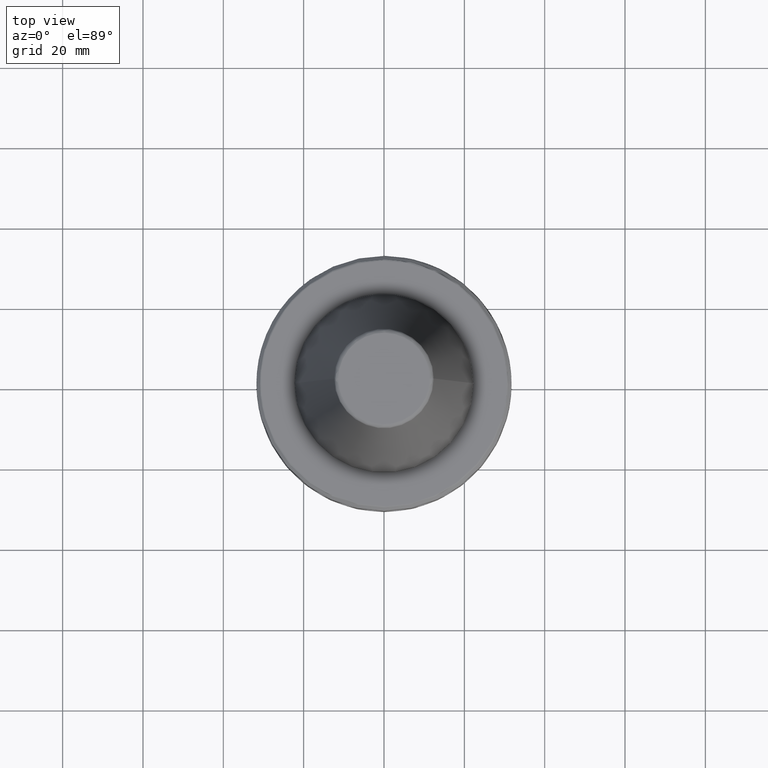
[diagram: clean part render]
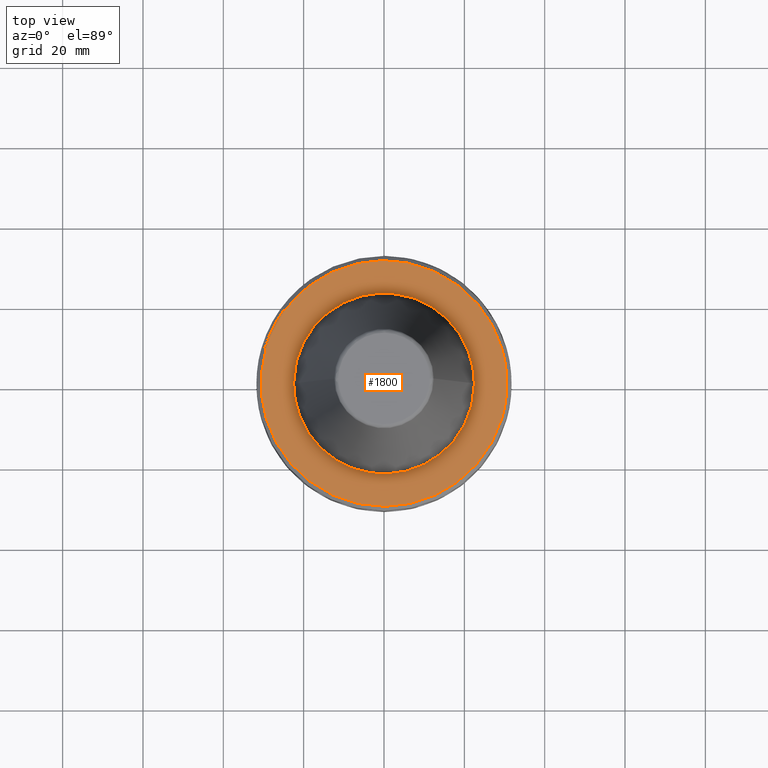
[diagram: same view with one face highlighted and labeled with its STEP entity id]
A machine part, top view. The second image highlights one B-rep face of the part: STEP entity #1800.
In plain terms, the highlighted planar face has unit normal (0, 0, 1).
Its self-contained STEP definition (entity closure, byte-faithful):
#3 = DIRECTION ( 'NONE',  ( -0.0000000000000000000, -0.0000000000000000000, 1.000000000000000000 ) ) ;
#6 = CARTESIAN_POINT ( 'NONE',  ( 20.98673507276421500, -8.112282896148103700, -3.200000000000000200 ) ) ;
#11 = CARTESIAN_POINT ( 'NONE',  ( 26.68593816532890600, 14.94335966607923400, -3.199999999999999700 ) ) ;
#18 = CARTESIAN_POINT ( 'NONE',  ( 14.49938022714922100, -17.23607257882569900, -3.199999999999999300 ) ) ;
#23 = CARTESIAN_POINT ( 'NONE',  ( -14.07778958758137100, -27.15192223846998900, -3.200000000000000200 ) ) ;
#26 = CARTESIAN_POINT ( 'NONE',  ( 19.96233499372355900, 23.17496761739398900, -3.200000000000000600 ) ) ;
#30 = CARTESIAN_POINT ( 'NONE',  ( 8.324524703929661500, -20.90345235396846500, -3.200000000000000600 ) ) ;
#36 = CARTESIAN_POINT ( 'NONE',  ( -5.007473042363042900, -30.17190452210243400, -3.199999999999999700 ) ) ;
#41 = CARTESIAN_POINT ( 'NONE',  ( 8.333223866109701600, 29.45234853338342900, -3.200000000000000200 ) ) ;
#47 = CARTESIAN_POINT ( 'NONE',  ( -1.715646395057947200, -22.45307472456143200, -3.200000000000000600 ) ) ;
#54 = CARTESIAN_POINT ( 'NONE',  ( 4.606748291940482100, -30.23542110148255100, -3.200000000000001100 ) ) ;
#56 = CARTESIAN_POINT ( 'NONE',  ( -2.603266312792912100, 30.49913331156268400, -3.200000000000000200 ) ) ;
#59 = CARTESIAN_POINT ( 'NONE',  ( -8.112282896148109000, -20.98673507276421500, -3.200000000000000200 ) ) ;
#62 = B_SPLINE_CURVE_WITH_KNOTS ( 'NONE', 3,
 ( #699, #941, #3005, #1649, #236, #1875, #469, #2109, #712, #2330, #947, #2550, #1184, #2773, #1427, #6, #1658, #245, #1883, #480, #2117, #719, #2337, #958, #2561, #1193, #2786, #1437, #18, #1671, #255, #1896, #493, #2128, #733, #2346, #972, #2572, #1209, #2801, #1450, #30, #1684, #268, #1908, #505, #2138, #749, #2358, #984, #2586, #1224, #2818, #1466, #47, #1693, #283, #1925, #519, #2153, #766, #2371, #1001, #2603, #1243, #2831, #1482, #59, #1714, #297, #1941, #535, #2167, #780, #2383, #1016, #2616, #1256, #2845, #1499, #76, #1727, #313, #1953, #550, #2181, #797, #2394, #1030, #2632, #1267, #2857, #1512, #91, #1739, #325, #1966, #560, #2189, #809, #2406, #1042, #2643, #1280, #2867, #1524 ),
 .UNSPECIFIED., .F., .F.,
 ( 4, 1, 1, 1, 1, 1, 2, 2, 1, 1, 1, 1, 2, 2, 1, 1, 1, 2, 2, 2, 1, 1, 1, 2, 2, 1, 1, 1, 1, 2, 2, 1, 1, 1, 1, 1, 2, 2, 2, 1, 1, 1, 1, 1, 2, 2, 1, 1, 1, 1, 2, 2, 1, 1, 1, 2, 2, 2, 1, 1, 1, 2, 2, 1, 1, 1, 1, 2, 2, 1, 1, 1, 1, 1, 2, 2, 4 ),
 ( 0.0000000000000000000, 0.03124999999999908400, 0.04687499999999860500, 0.05468749999999836900, 0.05859374999999825800, 0.06054687499999819600, 0.06152343749999818900, 0.06249999999999818200, 0.09374999999999732200, 0.1093749999999968900, 0.1171874999999966700, 0.1210937499999965400, 0.1230468749999965400, 0.1249999999999965300, 0.1562499999999963600, 0.1718749999999962500, 0.1796874999999961700, 0.1835937499999960900, 0.1874999999999960000, 0.2499999999999953400, 0.2812499999999949500, 0.2968749999999948400, 0.3046874999999947800, 0.3085937499999947800, 0.3124999999999947800, 0.3437499999999951200, 0.3593749999999953400, 0.3671874999999953900, 0.3710937499999954500, 0.3730468749999955000, 0.3749999999999955600, 0.4062499999999958400, 0.4218749999999960000, 0.4296874999999960600, 0.4335937499999960600, 0.4355468749999960600, 0.4365234374999960600, 0.4374999999999960000, 0.4999999999999953400, 0.5312499999999950000, 0.5468749999999947800, 0.5546874999999946700, 0.5585937499999946700, 0.5605468749999945600, 0.5615234374999945600, 0.5624999999999944500, 0.5937499999999942300, 0.6093749999999941200, 0.6171874999999940000, 0.6210937499999938900, 0.6230468749999940000, 0.6249999999999940000, 0.6562499999999947800, 0.6718749999999952300, 0.6796874999999954500, 0.6835937499999955600, 0.6874999999999955600, 0.7499999999999982200, 0.7812499999999995600, 0.7968750000000002200, 0.8046875000000005600, 0.8085937500000007800, 0.8125000000000008900, 0.8437500000000022200, 0.8593750000000028900, 0.8671875000000032200, 0.8710937500000033300, 0.8730468750000034400, 0.8750000000000034400, 0.9062500000000028900, 0.9218750000000026600, 0.9296875000000025500, 0.9335937500000024400, 0.9355468750000023300, 0.9365234375000023300, 0.9375000000000022200, 1.000000000000000000 ),
 .UNSPECIFIED. ) ;
#65 = CARTESIAN_POINT ( 'NONE',  ( 13.61336996244277300, -27.38773233231018600, -3.200000000000001500 ) ) ;
#69 = CARTESIAN_POINT ( 'NONE',  ( -12.10176357993545800, 28.08831770798233800, -3.200000000000001100 ) ) ;
#70 = CARTESIAN_POINT ( 'NONE',  ( -19.53083148215308600, 11.18287332202958400, -3.199999999999999300 ) ) ;
#76 = CARTESIAN_POINT ( 'NONE',  ( -17.23607257883263300, -14.49938022713351800, -3.200000000000000200 ) ) ;
#81 = CARTESIAN_POINT ( 'NONE',  ( 23.46525560282735900, -19.64699716460515300, -3.200000000000000200 ) ) ;
#87 = CARTESIAN_POINT ( 'NONE',  ( 16.45896426179462000, 15.36086717162726200, -3.199999999999999700 ) ) ;
#91 = CARTESIAN_POINT ( 'NONE',  ( -20.90345235396920400, -8.324524703927284700, -3.199999999999999700 ) ) ;
#98 = CARTESIAN_POINT ( 'NONE',  ( 27.58831379343103400, -13.20180910046895500, -3.199999999999999300 ) ) ;
#105 = CARTESIAN_POINT ( 'NONE',  ( 20.88510905071724400, 8.370451108366499000, -3.200000000000001100 ) ) ;
#114 = CARTESIAN_POINT ( 'NONE',  ( 22.50000000000000400, 0.0000000000000000000, -3.199999999999999300 ) ) ;
#115 = CARTESIAN_POINT ( 'NONE',  ( -27.71504625243770200, -12.93363446211562200, -3.200000000000000600 ) ) ;
#130 = CARTESIAN_POINT ( 'NONE',  ( -23.04904609324717800, -20.11097302515148000, -3.200000000000001100 ) ) ;
#144 = CARTESIAN_POINT ( 'NONE',  ( 3.797919010150632600, 22.17744484798479100, -3.200000000000000600 ) ) ;
#146 = EDGE_CURVE ( 'NONE', #1605, #434, #1601, .T. ) ;
#155 = CARTESIAN_POINT ( 'NONE',  ( 8.197263642342381500, 20.95368502148494400, -3.199999999999999700 ) ) ;
#158 = CIRCLE ( 'NONE', #1852, 30.58431457505076500 ) ;
#202 = CARTESIAN_POINT ( 'NONE',  ( -10.69502432680689100, 19.82135572082859200, -3.200000000000000600 ) ) ;
#203 = CARTESIAN_POINT ( 'NONE',  ( -22.17743819738468900, 3.797954953880907400, -3.199999999999999700 ) ) ;
#211 = VERTEX_POINT ( 'NONE', #2939 ) ;
#236 = CARTESIAN_POINT ( 'NONE',  ( 22.22708190165376200, -3.501431974169107800, -3.200000000000000200 ) ) ;
#240 = CARTESIAN_POINT ( 'NONE',  ( 29.30593451889330900, 8.750000000000010700, -3.199999999999994400 ) ) ;
#245 = CARTESIAN_POINT ( 'NONE',  ( 20.93772414133970000, -8.237955812652693100, -3.200000000000000200 ) ) ;
#248 = CARTESIAN_POINT ( 'NONE',  ( 26.49765628487155300, 15.27351905694540200, -3.200000000000001500 ) ) ;
#255 = CARTESIAN_POINT ( 'NONE',  ( 12.87560569880346700, -18.45365423866068300, -3.200000000000000600 ) ) ;
#258 = CARTESIAN_POINT ( 'NONE',  ( -12.11250377912194600, -28.10533704285466800, -3.200000000000001100 ) ) ;
#261 = CARTESIAN_POINT ( 'NONE',  ( 19.36078262651082200, 23.67667543167396400, -3.200000000000001100 ) ) ;
#268 = CARTESIAN_POINT ( 'NONE',  ( 6.571610993358049800, -21.54071728405216400, -3.200000000000000600 ) ) ;
#274 = CARTESIAN_POINT ( 'NONE',  ( -4.757131534841852800, -30.21212539776593100, -3.200000000000000600 ) ) ;
#277 = CARTESIAN_POINT ( 'NONE',  ( 4.488890650663459600, 30.26424933308542700, -3.199999999999999700 ) ) ;
#279 = CARTESIAN_POINT ( 'NONE',  ( -25.46593605709676900, 17.03706203157484100, -3.199999999999999700 ) ) ;
#283 = CARTESIAN_POINT ( 'NONE',  ( -3.501364879224580000, -22.22709431610556100, -3.200000000000000600 ) ) ;
#285 = CARTESIAN_POINT ( 'NONE',  ( -4.183831549484186700, 22.10760170058108200, -3.199999999999999700 ) ) ;
#289 = VERTEX_POINT ( 'NONE', #360 ) ;
#290 = CARTESIAN_POINT ( 'NONE',  ( 6.650821378641679400, -29.87181404184202200, -3.200000000000000600 ) ) ;
#292 = CARTESIAN_POINT ( 'NONE',  ( -5.703788022667264800, 30.05429890996832800, -3.200000000000000200 ) ) ;
#297 = CARTESIAN_POINT ( 'NONE',  ( -8.237955812652499400, -20.93772414133978200, -3.199999999999999700 ) ) ;
#304 = CARTESIAN_POINT ( 'NONE',  ( 13.89121605745029900, -27.24785232258835400, -3.199999999999999700 ) ) ;
#307 = CARTESIAN_POINT ( 'NONE',  ( -14.47569103928371700, 27.05153356264569100, -3.200000000000000200 ) ) ;
#308 = CARTESIAN_POINT ( 'NONE',  ( -20.16961076429744200, 10.02279629559074100, -3.199999999999999300 ) ) ;
#313 = CARTESIAN_POINT ( 'NONE',  ( -18.45365423866372400, -12.87560569879659900, -3.200000000000001100 ) ) ;
#318 = CARTESIAN_POINT ( 'NONE',  ( 24.79077054220048000, -17.91356280173779000, -3.199999999999999300 ) ) ;
#324 = CARTESIAN_POINT ( 'NONE',  ( 18.06135158014742400, 13.42792791066801300, -3.200000000000000600 ) ) ;
#325 = CARTESIAN_POINT ( 'NONE',  ( -21.54071728403163600, -6.571610993424445500, -3.200000000000000600 ) ) ;
#329 = CARTESIAN_POINT ( 'NONE',  ( 28.30117587102769500, -11.69968984091869400, -3.200000000000000200 ) ) ;
#336 = CARTESIAN_POINT ( 'NONE',  ( 21.18878749287739200, 7.603831144559534600, -3.200000000000000600 ) ) ;
#341 = CARTESIAN_POINT ( 'NONE',  ( 0.0000000000000000000, 0.0000000000000000000, -3.200000000000000200 ) ) ;
#344 = CIRCLE ( 'NONE', #2570, 30.58431457505076500 ) ;
#346 = CARTESIAN_POINT ( 'NONE',  ( -27.65365956857750300, -13.06437642884285200, -3.199999999999999700 ) ) ;
#352 = CARTESIAN_POINT ( 'NONE',  ( 4.071751450878374500, 22.12851860711415200, -3.200000000000000200 ) ) ;
#356 = CARTESIAN_POINT ( 'NONE',  ( 13.61204652639695000, 17.98264380950372400, -3.200000000000000200 ) ) ;
#359 = CARTESIAN_POINT ( 'NONE',  ( -22.34825637510676100, -20.87982665237620600, -3.200000000000000200 ) ) ;
#360 = CARTESIAN_POINT ( 'NONE',  ( -22.50000000000000400, 2.755455298081544800E-015, -3.199999999999999300 ) ) ;
#361 = CARTESIAN_POINT ( 'NONE',  ( 0.0000000000000000000, 0.0000000000000000000, -3.199999999999994400 ) ) ;
#369 = CARTESIAN_POINT ( 'NONE',  ( 3.501364879195867800, 22.22709431610727600, -3.200000000000000600 ) ) ;
#376 = ORIENTED_EDGE ( 'NONE', *, *, #1685, .T. ) ;
#407 = CARTESIAN_POINT ( 'NONE',  ( 14.81177920650271000, 17.00797338683744500, -3.200000000000000600 ) ) ;
#418 = B_SPLINE_CURVE_WITH_KNOTS ( 'NONE', 3,
 ( #1434, #2296, #917, #2737, #671, #203, #439, #2978, #1950, #2841, #2177, #2852, #1734, #1721, #1507, #1492, #1263, #1252, #1023, #308, #70, #545, #790, #2389, #2077, #2967, #916, #1618, #2744, #664, #2295, #1377, #2285, #2736, #438, #202, #905, #670, #1142, #1842, #2820, #2589, #2361, #1698, #1468, #1228, #987, #751, #285, #2906, #2684, #2446, #1785, #1556, #1074, #844, #369, #144, #2661, #2218, #2888, #352, #588, #1766, #1998, #2067, #899, #1594, #155, #1808, #1579, #427, #2282, #652, #2709, #956, #2798, #356, #407, #87, #1736, #324, #1965, #559, #2188, #807, #2403, #1040, #2642, #1279, #2866, #1523, #105, #1748, #336, #1978, #574, #2199, #820, #2420, #1052, #2653, #1294, #2880, #1534, #114 ),
 .UNSPECIFIED., .F., .F.,
 ( 4, 1, 1, 1, 1, 1, 2, 2, 1, 1, 1, 1, 2, 2, 1, 1, 1, 2, 2, 2, 1, 1, 1, 2, 2, 1, 1, 1, 1, 2, 2, 1, 1, 1, 1, 1, 2, 2, 2, 1, 1, 1, 1, 1, 2, 2, 1, 1, 1, 1, 2, 2, 1, 1, 1, 2, 2, 2, 1, 1, 1, 2, 2, 1, 1, 1, 1, 2, 2, 1, 1, 1, 1, 1, 2, 2, 4 ),
 ( 0.0000000000000000000, 0.03124999999999839000, 0.04687499999999758500, 0.05468749999999717600, 0.05859374999999699500, 0.06054687499999689800, 0.06152343749999685700, 0.06249999999999680800, 0.09374999999999644700, 0.1093749999999962800, 0.1171874999999962000, 0.1210937499999961300, 0.1230468749999961400, 0.1249999999999961400, 0.1562499999999958900, 0.1718749999999958400, 0.1796874999999957800, 0.1835937499999957800, 0.1874999999999957800, 0.2499999999999961100, 0.2812499999999963400, 0.2968749999999964500, 0.3046874999999965000, 0.3085937499999965600, 0.3124999999999965600, 0.3437499999999969500, 0.3593749999999971700, 0.3671874999999973400, 0.3710937499999974500, 0.3730468749999974500, 0.3749999999999974500, 0.4062499999999965000, 0.4218749999999960000, 0.4296874999999957800, 0.4335937499999956700, 0.4355468749999956100, 0.4365234374999956100, 0.4374999999999956100, 0.4999999999999944500, 0.5312499999999938900, 0.5468749999999936700, 0.5546874999999936700, 0.5585937499999935600, 0.5605468749999935600, 0.5615234374999934500, 0.5624999999999934500, 0.5937499999999932300, 0.6093749999999931200, 0.6171874999999931200, 0.6210937499999930100, 0.6230468749999930100, 0.6249999999999930100, 0.6562499999999930100, 0.6718749999999931200, 0.6796874999999932300, 0.6835937499999932300, 0.6874999999999932300, 0.7499999999999935600, 0.7812499999999936700, 0.7968749999999937800, 0.8046874999999938900, 0.8085937499999938900, 0.8124999999999938900, 0.8437499999999942300, 0.8593749999999944500, 0.8671874999999946700, 0.8710937499999947800, 0.8730468749999948900, 0.8749999999999950000, 0.9062499999999963400, 0.9218749999999971100, 0.9296874999999975600, 0.9335937499999976700, 0.9355468749999977800, 0.9365234374999977800, 0.9374999999999978900, 1.000000000000000000 ),
 .UNSPECIFIED. ) ;
#427 = CARTESIAN_POINT ( 'NONE',  ( 10.02279629557633300, 20.16961076430403600, -3.200000000000000600 ) ) ;
#434 = VERTEX_POINT ( 'NONE', #2279 ) ;
#438 = CARTESIAN_POINT ( 'NONE',  ( -11.67597141481949700, 19.24838585783297900, -3.200000000000001100 ) ) ;
#439 = CARTESIAN_POINT ( 'NONE',  ( -22.15133245634663700, 3.946100473368277900, -3.200000000000000200 ) ) ;
#469 = CARTESIAN_POINT ( 'NONE',  ( 22.15133245634663300, -3.946100473371058700, -3.199999999999999700 ) ) ;
#475 = ORIENTED_EDGE ( 'NONE', *, *, #146, .T. ) ;
#474 = FACE_OUTER_BOUND ( 'NONE', #2458, .T. ) ;
#480 = CARTESIAN_POINT ( 'NONE',  ( 20.16961076428826500, -10.02279629559978100, -3.199999999999998800 ) ) ;
#486 = CARTESIAN_POINT ( 'NONE',  ( 26.10782023934454800, 15.94270692371157900, -3.200000000000000600 ) ) ;
#493 = CARTESIAN_POINT ( 'NONE',  ( 12.47437238289376500, -18.72563884435562500, -3.200000000000000600 ) ) ;
#496 = CARTESIAN_POINT ( 'NONE',  ( -10.07230210985404100, -28.87952157733320000, -3.200000000000000600 ) ) ;
#499 = CARTESIAN_POINT ( 'NONE',  ( 18.63100279129773500, 24.26260340260907000, -3.200000000000000600 ) ) ;
#505 = CARTESIAN_POINT ( 'NONE',  ( 4.719991316668444600, -22.00072453873692200, -3.200000000000000200 ) ) ;
#509 = CARTESIAN_POINT ( 'NONE',  ( -3.114025609210415700, -30.46541640381289900, -3.199999999999999700 ) ) ;
#511 = CARTESIAN_POINT ( 'NONE',  ( 2.907181702342454900, 30.44653720225969800, -3.200000000000001100 ) ) ;
#519 = CARTESIAN_POINT ( 'NONE',  ( -3.946081902448917300, -22.15133589248955200, -3.200000000000000600 ) ) ;
#528 = CARTESIAN_POINT ( 'NONE',  ( 8.703095408813183600, -29.32115263377833300, -3.199999999999999700 ) ) ;
#530 = CARTESIAN_POINT ( 'NONE',  ( -7.688059179597152200, 29.60519698498956800, -3.200000000000000200 ) ) ;
#535 = CARTESIAN_POINT ( 'NONE',  ( -10.02279629560528400, -20.16961076428609100, -3.200000000000000600 ) ) ;
#542 = CARTESIAN_POINT ( 'NONE',  ( 16.91770336023969200, -25.53517509604582600, -3.200000000000000600 ) ) ;
#544 = CARTESIAN_POINT ( 'NONE',  ( -18.49999999999998900, 24.35467712833949600, -3.199999999999994400 ) ) ;
#545 = CARTESIAN_POINT ( 'NONE',  ( -19.18907189198502300, 11.75138774876048900, -3.200000000000000600 ) ) ;
#550 = CARTESIAN_POINT ( 'NONE',  ( -18.72563884435658800, -12.47437238289159500, -3.200000000000000200 ) ) ;
#554 = CARTESIAN_POINT ( 'NONE',  ( 25.09107183107505900, -17.48831565734377900, -3.200000000000000200 ) ) ;
#559 = CARTESIAN_POINT ( 'NONE',  ( 18.61742605471209400, 12.63533988221464600, -3.199999999999999700 ) ) ;
#560 = CARTESIAN_POINT ( 'NONE',  ( -22.00072453872795100, -4.719991316697491600, -3.200000000000000600 ) ) ;
#564 = CARTESIAN_POINT ( 'NONE',  ( 29.30593451889331300, -8.750000000000001800, -3.199999999999994400 ) ) ;
#574 = CARTESIAN_POINT ( 'NONE',  ( 21.86223353762935800, 5.341505914837489000, -3.200000000000000600 ) ) ;
#575 = CARTESIAN_POINT ( 'NONE',  ( -29.08260568820441300, -9.497984010097116700, -3.200000000000000200 ) ) ;
#582 = AXIS2_PLACEMENT_3D ( 'NONE', #361, #2007, #598 ) ;
#585 = CARTESIAN_POINT ( 'NONE',  ( -26.72045296951694100, -14.91898429064515100, -3.200000000000001100 ) ) ;
#588 = CARTESIAN_POINT ( 'NONE',  ( 4.811519987909519200, 21.99164062165363400, -3.200000000000000200 ) ) ;
#595 = CARTESIAN_POINT ( 'NONE',  ( -22.13473294562287600, -21.10604030069013600, -3.200000000000000600 ) ) ;
#598 = DIRECTION ( 'NONE',  ( 1.000000000000000000, 0.0000000000000000000, 0.0000000000000000000 ) ) ;
#652 = CARTESIAN_POINT ( 'NONE',  ( 11.75138774875418000, 19.18907189198790100, -3.200000000000001100 ) ) ;
#654 = EDGE_CURVE ( 'NONE', #974, #1738, #158, .T. ) ;
#664 = CARTESIAN_POINT ( 'NONE',  ( -13.42792791067768300, 18.06135158014102500, -3.200000000000000200 ) ) ;
#670 = CARTESIAN_POINT ( 'NONE',  ( -8.896980882711639900, 20.66783356944006700, -3.199999999999999700 ) ) ;
#671 = CARTESIAN_POINT ( 'NONE',  ( -22.22708190165376200, 3.501431974159047400, -3.199999999999999700 ) ) ;
#699 = CARTESIAN_POINT ( 'NONE',  ( 22.50000000000000400, 0.0000000000000000000, -3.199999999999999300 ) ) ;
#707 = EDGE_CURVE ( 'NONE', #289, #1091, #418, .T. ) ;
#712 = CARTESIAN_POINT ( 'NONE',  ( 22.13216582914422800, -4.051871761185046800, -3.199999999999999300 ) ) ;
#713 = B_SPLINE_CURVE_WITH_KNOTS ( 'NONE', 3,
 ( #2200, #575, #2656, #1295, #2882, #1535, #115, #1763, #346, #1992, #585, #2214, #831, #2433, #1066, #2669, #1305, #2894, #1544, #130, #1771, #359, #2004, #595, #2225, #724, #2340, #962, #2563, #1196, #2791, #1439, #23, #1674, #258, #1898, #496, #2131, #738, #2351, #976, #2577, #1214, #2805, #1458, #36, #1690, #274, #1914, #509, #2143, #755, #2363, #991, #2593, #1232, #2823, #1472, #54, #1702, #290, #1932, #528, #2158, #771, #2376, #1008, #2609, #1249, #2838, #1488, #65, #1718, #304, #1945, #542, #2175, #786, #2385, #1020, #2621, #1260, #2850, #1505, #81, #1731, #318, #1959, #554, #2186, #802, #2399, #1032, #2638, #1272, #2860, #1518, #98, #1743, #329, #1972, #564 ),
 .UNSPECIFIED., .F., .F.,
 ( 4, 1, 1, 1, 1, 2, 2, 1, 1, 1, 1, 2, 2, 1, 1, 1, 2, 2, 2, 1, 1, 1, 2, 2, 1, 1, 1, 1, 2, 2, 1, 1, 1, 1, 2, 2, 2, 1, 1, 1, 1, 2, 2, 1, 1, 1, 1, 2, 2, 1, 1, 1, 2, 2, 2, 1, 1, 1, 2, 2, 1, 1, 1, 1, 2, 2, 1, 1, 1, 1, 2, 2, 4 ),
 ( 0.0000000000000000000, 0.03124999999999780000, 0.04687499999999667600, 0.05468749999999608000, 0.05859374999999581600, 0.06054687499999568400, 0.06249999999999554500, 0.09374999999999403300, 0.1093749999999932600, 0.1171874999999928500, 0.1210937499999925900, 0.1230468749999924500, 0.1249999999999923100, 0.1562499999999910300, 0.1718749999999904200, 0.1796874999999900600, 0.1835937499999899200, 0.1874999999999897900, 0.2499999999999895600, 0.2812499999999894000, 0.2968749999999894500, 0.3046874999999894500, 0.3085937499999895100, 0.3124999999999895600, 0.3437499999999902300, 0.3593749999999906200, 0.3671874999999908400, 0.3710937499999909000, 0.3730468749999910100, 0.3749999999999910600, 0.4062499999999912800, 0.4218749999999913400, 0.4296874999999913400, 0.4335937499999913400, 0.4355468749999913400, 0.4374999999999912800, 0.4999999999999916700, 0.5312499999999919000, 0.5468749999999920100, 0.5546874999999921200, 0.5585937499999922300, 0.5605468749999922300, 0.5624999999999921200, 0.5937499999999924500, 0.6093749999999925600, 0.6171874999999925600, 0.6210937499999925600, 0.6230468749999925600, 0.6249999999999925600, 0.6562499999999924500, 0.6718749999999923400, 0.6796874999999923400, 0.6835937499999924500, 0.6874999999999924500, 0.7499999999999933400, 0.7812499999999938900, 0.7968749999999941200, 0.8046874999999942300, 0.8085937499999942300, 0.8124999999999943400, 0.8437499999999948900, 0.8593749999999952300, 0.8671874999999954500, 0.8710937499999956700, 0.8730468749999956700, 0.8749999999999957800, 0.9062499999999968900, 0.9218749999999974500, 0.9296874999999976700, 0.9335937499999976700, 0.9355468749999977800, 0.9374999999999978900, 1.000000000000000000 ),
 .UNSPECIFIED. ) ;
#719 = CARTESIAN_POINT ( 'NONE',  ( 19.18907189198100100, -11.75138774876444200, -3.200000000000001100 ) ) ;
#724 = CARTESIAN_POINT ( 'NONE',  ( -19.62778218944514600, -23.51603751686526800, -3.200000000000001100 ) ) ;
#727 = CARTESIAN_POINT ( 'NONE',  ( 25.08445269889310200, 17.50055599943942000, -3.200000000000000200 ) ) ;
#733 = CARTESIAN_POINT ( 'NONE',  ( 11.67597141480891300, -19.24838585783804100, -3.200000000000000600 ) ) ;
#738 = CARTESIAN_POINT ( 'NONE',  ( -9.578915174272756500, -29.04560989628474800, -3.199999999999999700 ) ) ;
#743 = CARTESIAN_POINT ( 'NONE',  ( 16.98769424001547900, 25.43598951906484400, -3.200000000000000200 ) ) ;
#749 = CARTESIAN_POINT ( 'NONE',  ( 4.251028217301676900, -22.09485092206981000, -3.200000000000000200 ) ) ;
#751 = CARTESIAN_POINT ( 'NONE',  ( -4.251028217307362100, 22.09485092206773900, -3.200000000000001100 ) ) ;
#755 = CARTESIAN_POINT ( 'NONE',  ( 0.7805261269332110000, -30.58432787732824200, -3.200000000000000600 ) ) ;
#759 = CARTESIAN_POINT ( 'NONE',  ( 2.528533460623899400, 30.47970956005763600, -3.199999999999998800 ) ) ;
#766 = CARTESIAN_POINT ( 'NONE',  ( -4.051866326836864700, -22.13216683465148900, -3.199999999999999700 ) ) ;
#771 = CARTESIAN_POINT ( 'NONE',  ( 9.187465360224598100, -29.17179097118384600, -3.200000000000000200 ) ) ;
#774 = CARTESIAN_POINT ( 'NONE',  ( -8.442993445781290500, 29.39627059819669300, -3.200000000000000200 ) ) ;
#780 = CARTESIAN_POINT ( 'NONE',  ( -11.75138774876684200, -19.18907189198004900, -3.200000000000000200 ) ) ;
#786 = CARTESIAN_POINT ( 'NONE',  ( 19.93203895168906900, -23.22435209602277700, -3.199999999999999700 ) ) ;
#790 = CARTESIAN_POINT ( 'NONE',  ( -19.03780993567813700, 11.99256734168333200, -3.200000000000000200 ) ) ;
#797 = CARTESIAN_POINT ( 'NONE',  ( -19.24838585782649900, -11.67597141482940200, -3.199999999999999700 ) ) ;
#802 = CARTESIAN_POINT ( 'NONE',  ( 25.18089566416776700, -17.35872434407947300, -3.200000000000000200 ) ) ;
#807 = CARTESIAN_POINT ( 'NONE',  ( 18.78040064549280100, 12.39175045570927500, -3.199999999999998800 ) ) ;
#809 = CARTESIAN_POINT ( 'NONE',  ( -22.09485092206732700, -4.251028217309717600, -3.200000000000000600 ) ) ;
#817 = CARTESIAN_POINT ( 'NONE',  ( 29.30593451889330900, 8.750000000000010700, -3.199999999999994400 ) ) ;
#820 = CARTESIAN_POINT ( 'NONE',  ( 22.06440325786003600, 4.407618502884258900, -3.200000000000000200 ) ) ;
#829 = VERTEX_POINT ( 'NONE', #1093 ) ;
#831 = CARTESIAN_POINT ( 'NONE',  ( -25.60566437920638400, -16.72793511368144300, -3.199999999999999700 ) ) ;
#844 = CARTESIAN_POINT ( 'NONE',  ( 2.907343231789928200, 22.31611948088413700, -3.200000000000001100 ) ) ;
#885 = EDGE_CURVE ( 'NONE', #2784, #211, #713, .T. ) ;
#899 = CARTESIAN_POINT ( 'NONE',  ( 7.984698353428139100, 21.03591195339260300, -3.200000000000000200 ) ) ;
#905 = CARTESIAN_POINT ( 'NONE',  ( -9.504079748845599700, 20.40055232577251900, -3.200000000000001500 ) ) ;
#916 = CARTESIAN_POINT ( 'NONE',  ( -17.00797338682269500, 14.81177920651246400, -3.200000000000000600 ) ) ;
#917 = CARTESIAN_POINT ( 'NONE',  ( -22.45304634867162000, 1.715799754908170300, -3.200000000000000600 ) ) ;
#941 = CARTESIAN_POINT ( 'NONE',  ( 22.49999999999999600, -0.6880163828697204400, -3.199999999999998800 ) ) ;
#947 = CARTESIAN_POINT ( 'NONE',  ( 21.99164062164117800, -4.811519987949947300, -3.200000000000000600 ) ) ;
#956 = CARTESIAN_POINT ( 'NONE',  ( 12.15280497093997500, 18.93590339580323000, -3.200000000000000200 ) ) ;
#958 = CARTESIAN_POINT ( 'NONE',  ( 18.93590339580105900, -12.15280497094321500, -3.200000000000000200 ) ) ;
#962 = CARTESIAN_POINT ( 'NONE',  ( -16.55116382284848000, -25.74326481162033500, -3.200000000000000200 ) ) ;
#965 = CARTESIAN_POINT ( 'NONE',  ( 24.54047191478592900, 18.25550594146890800, -3.200000000000001100 ) ) ;
#972 = CARTESIAN_POINT ( 'NONE',  ( 9.504079748831721000, -20.40055232577914500, -3.200000000000000600 ) ) ;
#974 = VERTEX_POINT ( 'NONE', #1075 ) ;
#976 = CARTESIAN_POINT ( 'NONE',  ( -9.429042497915617100, -29.09460387900038800, -3.200000000000000200 ) ) ;
#978 = CARTESIAN_POINT ( 'NONE',  ( 16.33427142386522500, 25.85726144149187200, -3.200000000000000200 ) ) ;
#979 = CARTESIAN_POINT ( 'NONE',  ( -28.78023418526829900, 10.51070166328857000, -3.200000000000000200 ) ) ;
#984 = CARTESIAN_POINT ( 'NONE',  ( 4.139014538615635200, -22.11603594838316400, -3.200000000000000200 ) ) ;
#987 = CARTESIAN_POINT ( 'NONE',  ( -4.407618502888016800, 22.06440325785875700, -3.199999999999999300 ) ) ;
#991 = CARTESIAN_POINT ( 'NONE',  ( 3.304367424510945100, -30.40973943781369100, -3.200000000000001500 ) ) ;
#994 = CARTESIAN_POINT ( 'NONE',  ( 1.756429892742336700, 30.54018886217601300, -3.200000000000000200 ) ) ;
#1001 = CARTESIAN_POINT ( 'NONE',  ( -4.811519987949943700, -21.99164062164117100, -3.199999999999999700 ) ) ;
#1008 = CARTESIAN_POINT ( 'NONE',  ( 9.331192961516467900, -29.12613594598079600, -3.199999999999999300 ) ) ;
#1011 = CIRCLE ( 'NONE', #582, 30.58431457505076500 ) ;
#1012 = CARTESIAN_POINT ( 'NONE',  ( -9.340167935440481600, 29.12987215590241500, -3.200000000000000200 ) ) ;
#1016 = CARTESIAN_POINT ( 'NONE',  ( -12.15280497094398100, -18.93590339580075400, -3.199999999999999700 ) ) ;
#1020 = CARTESIAN_POINT ( 'NONE',  ( 21.54431431262226600, -21.70996927689732900, -3.200000000000000600 ) ) ;
#1023 = CARTESIAN_POINT ( 'NONE',  ( -20.64043889494947600, 8.988933404968230800, -3.200000000000000600 ) ) ;
#1030 = CARTESIAN_POINT ( 'NONE',  ( -20.40055232576401100, -9.504079748858595500, -3.199999999999999700 ) ) ;
#1032 = CARTESIAN_POINT ( 'NONE',  ( 26.31643672377798600, -15.62062435596873700, -3.200000000000001100 ) ) ;
#1040 = CARTESIAN_POINT ( 'NONE',  ( 19.82135572083119300, 10.69502432680279600, -3.200000000000000600 ) ) ;
#1042 = CARTESIAN_POINT ( 'NONE',  ( -22.11603594838243900, -4.139014538617989700, -3.200000000000000600 ) ) ;
#1052 = CARTESIAN_POINT ( 'NONE',  ( 22.10760170058146200, 4.183831549483062200, -3.200000000000000200 ) ) ;
#1063 = DIRECTION ( 'NONE',  ( 1.000000000000000000, 0.0000000000000000000, -0.0000000000000000000 ) ) ;
#1066 = CARTESIAN_POINT ( 'NONE',  ( -25.32397030503309300, -17.14932757286798500, -3.200000000000000200 ) ) ;
#1074 = CARTESIAN_POINT ( 'NONE',  ( 1.715646394992351700, 22.45307472456536100, -3.200000000000000600 ) ) ;
#1075 = CARTESIAN_POINT ( 'NONE',  ( 30.58431457505076500, 0.0000000000000000000, -3.199999999999996600 ) ) ;
#1091 = VERTEX_POINT ( 'NONE', #1321 ) ;
#1093 = CARTESIAN_POINT ( 'NONE',  ( -18.49999999999998900, 24.35467712833949600, -3.199999999999994400 ) ) ;
#1140 = ORIENTED_EDGE ( 'NONE', *, *, #707, .T. ) ;
#1142 = CARTESIAN_POINT ( 'NONE',  ( -8.590524805356333000, 20.79589492657273900, -3.199999999999999700 ) ) ;
#1148 = DIRECTION ( 'NONE',  ( -0.0000000000000000000, -0.0000000000000000000, 1.000000000000000000 ) ) ;
#1184 = CARTESIAN_POINT ( 'NONE',  ( 21.36063849915200700, -7.086048807701382100, -3.199999999999998800 ) ) ;
#1191 = CARTESIAN_POINT ( 'NONE',  ( 28.33583760078838100, 11.62329757012845700, -3.200000000000000600 ) ) ;
#1192 = CARTESIAN_POINT ( 'NONE',  ( -29.30593451889331300, 8.750000000000008900, -3.199999999999999300 ) ) ;
#1193 = CARTESIAN_POINT ( 'NONE',  ( 17.98264380952407700, -13.61204652636657500, -3.199999999999999700 ) ) ;
#1196 = CARTESIAN_POINT ( 'NONE',  ( -14.63881711984340800, -26.85489300922450800, -3.199999999999999700 ) ) ;
#1200 = CARTESIAN_POINT ( 'NONE',  ( 22.77429056693588900, 20.45246270164044200, -3.200000000000001100 ) ) ;
#1209 = CARTESIAN_POINT ( 'NONE',  ( 8.590524805351991600, -20.79589492657481400, -3.199999999999999700 ) ) ;
#1214 = CARTESIAN_POINT ( 'NONE',  ( -7.438720675766394800, -29.68542035773223400, -3.200000000000001500 ) ) ;
#1217 = CARTESIAN_POINT ( 'NONE',  ( 16.13498759199762100, 25.98207429179320400, -3.199999999999999700 ) ) ;
#1224 = CARTESIAN_POINT ( 'NONE',  ( 2.741286511513688400, -22.37475781689234500, -3.199999999999999700 ) ) ;
#1226 = B_SPLINE_CURVE_WITH_KNOTS ( 'NONE', 3,
 ( #240, #2098, #1191, #2781, #1433, #11, #1664, #248, #1887, #486, #2124, #727, #2343, #965, #2566, #1200, #2794, #1444, #26, #1677, #261, #1902, #499, #2133, #743, #2354, #978, #2579, #1217, #2810, #1461, #41, #1692, #277, #1917, #511, #2148, #759, #2365, #994, #2595, #1235, #2826, #1475, #56, #1708, #292, #1934, #530, #2161, #774, #2378, #1012, #2612, #1251, #2840, #1491, #69, #1720, #307, #1948, #544 ),
 .UNSPECIFIED., .F., .F.,
 ( 4, 1, 1, 1, 1, 2, 2, 1, 2, 2, 2, 1, 1, 2, 2, 1, 1, 1, 2, 2, 2, 1, 1, 1, 1, 2, 2, 1, 2, 2, 2, 1, 1, 2, 2, 1, 1, 1, 2, 2, 4 ),
 ( 0.0000000000000000000, 0.06250000000000223400, 0.09375000000000338600, 0.1093750000000039600, 0.1171875000000042000, 0.1210937500000042500, 0.1250000000000042700, 0.1562500000000047700, 0.1718750000000050200, 0.1875000000000052700, 0.2500000000000063800, 0.2812500000000069900, 0.2968750000000072200, 0.3046875000000072700, 0.3125000000000073300, 0.3437500000000078800, 0.3593750000000081000, 0.3671875000000082700, 0.3710937500000083300, 0.3750000000000083300, 0.5000000000000060000, 0.5625000000000048800, 0.5937500000000043300, 0.6093750000000040000, 0.6171875000000038900, 0.6210937500000037700, 0.6250000000000036600, 0.6562500000000032200, 0.6718750000000030000, 0.6875000000000027800, 0.7500000000000017800, 0.7812500000000014400, 0.7968750000000012200, 0.8046875000000011100, 0.8125000000000011100, 0.8437500000000012200, 0.8593750000000012200, 0.8671875000000012200, 0.8710937500000012200, 0.8750000000000013300, 1.000000000000000000 ),
 .UNSPECIFIED. ) ;
#1228 = CARTESIAN_POINT ( 'NONE',  ( -4.719991316688983800, 22.00072453872944300, -3.200000000000000600 ) ) ;
#1232 = CARTESIAN_POINT ( 'NONE',  ( 4.319105167334708300, -30.27808647421170800, -3.199999999999999700 ) ) ;
#1235 = CARTESIAN_POINT ( 'NONE',  ( -0.1069271606581412600, 30.58574494882752100, -3.200000000000001100 ) ) ;
#1243 = CARTESIAN_POINT ( 'NONE',  ( -7.086048807701388300, -21.36063849915201700, -3.200000000000001100 ) ) ;
#1249 = CARTESIAN_POINT ( 'NONE',  ( 11.34454123684995600, -28.42400519015282300, -3.199999999999999700 ) ) ;
#1251 = CARTESIAN_POINT ( 'NONE',  ( -11.24038425294622500, 28.44688173160703600, -3.199999999999999300 ) ) ;
#1252 = CARTESIAN_POINT ( 'NONE',  ( -20.93772414133938800, 8.237955812653009200, -3.200000000000000200 ) ) ;
#1256 = CARTESIAN_POINT ( 'NONE',  ( -13.61204652640028800, -17.98264380950038800, -3.200000000000000200 ) ) ;
#1260 = CARTESIAN_POINT ( 'NONE',  ( 21.91487604512462500, -21.33423715767088100, -3.200000000000001100 ) ) ;
#1263 = CARTESIAN_POINT ( 'NONE',  ( -20.95368502148434700, 8.197263642344069000, -3.199999999999999300 ) ) ;
#1267 = CARTESIAN_POINT ( 'NONE',  ( -20.79589492657008900, -8.590524805360397300, -3.200000000000000200 ) ) ;
#1272 = CARTESIAN_POINT ( 'NONE',  ( 27.32133677085897000, -13.74839770497927400, -3.199999999999999700 ) ) ;
#1279 = CARTESIAN_POINT ( 'NONE',  ( 20.66783356944120300, 8.896980882709847500, -3.200000000000000200 ) ) ;
#1280 = CARTESIAN_POINT ( 'NONE',  ( -22.37479026312430700, -2.741111199249898400, -3.200000000000000600 ) ) ;
#1294 = CARTESIAN_POINT ( 'NONE',  ( 22.12045798509555900, 4.115310202398825700, -3.200000000000000600 ) ) ;
#1295 = CARTESIAN_POINT ( 'NONE',  ( -28.19324632027987900, -11.86640829661781500, -3.200000000000000200 ) ) ;
#1305 = CARTESIAN_POINT ( 'NONE',  ( -25.23910393721046200, -17.27398592321662800, -3.200000000000000200 ) ) ;
#1321 = CARTESIAN_POINT ( 'NONE',  ( 22.50000000000000400, 0.0000000000000000000, -3.199999999999999300 ) ) ;
#1377 = CARTESIAN_POINT ( 'NONE',  ( -12.63533988221804100, 18.61742605470986000, -3.200000000000000200 ) ) ;
#1380 = ORIENTED_EDGE ( 'NONE', *, *, #2948, .T. ) ;
#1401 = CARTESIAN_POINT ( 'NONE',  ( -24.35467712833948900, 18.50000000000000000, -3.199999999999994400 ) ) ;
#1423 = CARTESIAN_POINT ( 'NONE',  ( 0.0000000000000000000, 0.0000000000000000000, -3.199999999999994400 ) ) ;
#1427 = CARTESIAN_POINT ( 'NONE',  ( 21.03591195338748300, -7.984698353444730200, -3.199999999999999300 ) ) ;
#1433 = CARTESIAN_POINT ( 'NONE',  ( 26.94337422490542300, 14.47847139620824000, -3.200000000000000200 ) ) ;
#1434 = CARTESIAN_POINT ( 'NONE',  ( -22.50000000000000400, 2.755455298081544800E-015, -3.199999999999999300 ) ) ;
#1437 = CARTESIAN_POINT ( 'NONE',  ( 15.36086717163637700, -16.45896426179050900, -3.199999999999999700 ) ) ;
#1439 = CARTESIAN_POINT ( 'NONE',  ( -14.17277443620803400, -27.10247095660044200, -3.200000000000000200 ) ) ;
#1444 = CARTESIAN_POINT ( 'NONE',  ( 20.78517142377217700, 22.45144644049074500, -3.199999999999999700 ) ) ;
#1450 = CARTESIAN_POINT ( 'NONE',  ( 8.370451108365493600, -20.88510905071769100, -3.200000000000001100 ) ) ;
#1458 = CARTESIAN_POINT ( 'NONE',  ( -5.357254148467523800, -30.11268354680666400, -3.200000000000000200 ) ) ;
#1461 = CARTESIAN_POINT ( 'NONE',  ( 11.80488663217673900, 28.31907149285062900, -3.199999999999999700 ) ) ;
#1466 = CARTESIAN_POINT ( 'NONE',  ( -0.6879287486564484900, -22.50001621479418300, -3.200000000000000200 ) ) ;
#1468 = CARTESIAN_POINT ( 'NONE',  ( -5.341505914849514100, 21.86223353762529300, -3.200000000000000600 ) ) ;
#1472 = CARTESIAN_POINT ( 'NONE',  ( 4.560392810198640800, -30.24244440558943100, -3.200000000000000200 ) ) ;
#1475 = CARTESIAN_POINT ( 'NONE',  ( -1.037282440228860500, 30.56832190550300900, -3.200000000000000600 ) ) ;
#1482 = CARTESIAN_POINT ( 'NONE',  ( -7.984698353444732000, -21.03591195338748700, -3.200000000000000200 ) ) ;
#1488 = CARTESIAN_POINT ( 'NONE',  ( 13.33348093169566300, -27.52628396580366000, -3.200000000000000200 ) ) ;
#1491 = CARTESIAN_POINT ( 'NONE',  ( -11.95872026362621900, 28.14951867898244600, -3.200000000000000200 ) ) ;
#1492 = CARTESIAN_POINT ( 'NONE',  ( -20.98673507276603100, 8.112282896141666200, -3.200000000000000600 ) ) ;
#1499 = CARTESIAN_POINT ( 'NONE',  ( -16.45896426179448100, -15.36086717162741000, -3.200000000000001100 ) ) ;
#1505 = CARTESIAN_POINT ( 'NONE',  ( 22.63882571490952200, -20.58104395218990500, -3.200000000000000600 ) ) ;
#1507 = CARTESIAN_POINT ( 'NONE',  ( -21.03591195339058500, 7.984698353433742600, -3.200000000000000600 ) ) ;
#1512 = CARTESIAN_POINT ( 'NONE',  ( -20.88510905071626700, -8.370451108368008900, -3.199999999999999700 ) ) ;
#1518 = CARTESIAN_POINT ( 'NONE',  ( 27.54438001541174000, -13.29323302809550500, -3.200000000000000200 ) ) ;
#1523 = CARTESIAN_POINT ( 'NONE',  ( 20.84958280862257900, 8.458563634141711400, -3.200000000000000200 ) ) ;
#1524 = CARTESIAN_POINT ( 'NONE',  ( -22.50000000000000400, 2.755455298081544800E-015, -3.199999999999999300 ) ) ;
#1534 = CARTESIAN_POINT ( 'NONE',  ( 22.50000000000000400, 1.376388306145680500, -3.200000000000000200 ) ) ;
#1535 = CARTESIAN_POINT ( 'NONE',  ( -27.77681930598307900, -12.80099507031015300, -3.200000000000000600 ) ) ;
#1544 = CARTESIAN_POINT ( 'NONE',  ( -23.99031363753007500, -19.00230350504480000, -3.200000000000000600 ) ) ;
#1556 = CARTESIAN_POINT ( 'NONE',  ( 0.6879287486189594700, 22.50001621479642500, -3.199999999999999300 ) ) ;
#1575 = AXIS2_PLACEMENT_3D ( 'NONE', #341, #2430, #1063 ) ;
#1579 = CARTESIAN_POINT ( 'NONE',  ( 8.988933404959995600, 20.64043889495324200, -3.200000000000000600 ) ) ;
#1594 = CARTESIAN_POINT ( 'NONE',  ( 8.112282896138385300, 20.98673507276721400, -3.200000000000000200 ) ) ;
#1601 = B_SPLINE_CURVE_WITH_KNOTS ( 'NONE', 3,
 ( #2107, #279, #1666, #2772, #979, #1192 ),
 .UNSPECIFIED., .F., .F.,
 ( 4, 2, 4 ),
 ( 0.0000000000000000000, 0.5000000000000000000, 1.000000000000000000 ),
 .UNSPECIFIED. ) ;
#1605 = VERTEX_POINT ( 'NONE', #1401 ) ;
#1618 = CARTESIAN_POINT ( 'NONE',  ( -15.36086717163463800, 16.45896426178976300, -3.200000000000001100 ) ) ;
#1649 = CARTESIAN_POINT ( 'NONE',  ( 22.31609819896382200, -2.907458251744042200, -3.200000000000000600 ) ) ;
#1650 = DIRECTION ( 'NONE',  ( 1.000000000000000000, 0.0000000000000000000, 0.0000000000000000000 ) ) ;
#1658 = CARTESIAN_POINT ( 'NONE',  ( 20.95368502148340500, -8.197263642347369500, -3.199999999999999700 ) ) ;
#1664 = CARTESIAN_POINT ( 'NONE',  ( 26.57327955334341100, 15.14158967653128800, -3.199999999999999300 ) ) ;
#1666 = CARTESIAN_POINT ( 'NONE',  ( -26.43773944749934700, 15.48610090929884100, -3.200000000000000600 ) ) ;
#1671 = CARTESIAN_POINT ( 'NONE',  ( 13.42792791067997600, -18.06135158014202000, -3.199999999999999700 ) ) ;
#1674 = CARTESIAN_POINT ( 'NONE',  ( -13.24394569617793300, -27.58067624820742500, -3.200000000000000200 ) ) ;
#1677 = CARTESIAN_POINT ( 'NONE',  ( 19.60237854233957200, 23.47705769605833500, -3.200000000000000200 ) ) ;
#1684 = CARTESIAN_POINT ( 'NONE',  ( 7.603831144541866000, -21.18878749288407800, -3.200000000000000200 ) ) ;
#1685 = EDGE_CURVE ( 'NONE', #1091, #289, #62, .T. ) ;
#1690 = CARTESIAN_POINT ( 'NONE',  ( -4.857303280930590700, -30.19618385839299200, -3.200000000000000600 ) ) ;
#1692 = CARTESIAN_POINT ( 'NONE',  ( 6.576107746342494800, 29.91282126789445400, -3.199999999999999300 ) ) ;
#1693 = CARTESIAN_POINT ( 'NONE',  ( -2.907343231839132800, -22.31611948088118800, -3.200000000000000600 ) ) ;
#1698 = CARTESIAN_POINT ( 'NONE',  ( -6.571610993404996200, 21.54071728403503300, -3.199999999999999700 ) ) ;
#1702 = CARTESIAN_POINT ( 'NONE',  ( 5.458850156843987600, -30.10416084471147600, -3.199999999999999700 ) ) ;
#1708 = CARTESIAN_POINT ( 'NONE',  ( -3.848954711156217900, 30.36703951690235600, -3.200000000000000200 ) ) ;
#1714 = CARTESIAN_POINT ( 'NONE',  ( -8.197263642347373000, -20.95368502148340900, -3.199999999999999700 ) ) ;
#1718 = CARTESIAN_POINT ( 'NONE',  ( 13.79955834376239000, -27.29438307719062400, -3.200000000000001100 ) ) ;
#1720 = CARTESIAN_POINT ( 'NONE',  ( -12.17478045277850300, 28.05674127324150300, -3.200000000000001100 ) ) ;
#1721 = CARTESIAN_POINT ( 'NONE',  ( -21.14787063409543700, 7.686207123284956900, -3.200000000000000200 ) ) ;
#1727 = CARTESIAN_POINT ( 'NONE',  ( -18.06135158014722800, -13.42792791066820300, -3.200000000000000600 ) ) ;
#1731 = CARTESIAN_POINT ( 'NONE',  ( 24.36043102569355800, -18.50078877836920200, -3.200000000000001100 ) ) ;
#1734 = CARTESIAN_POINT ( 'NONE',  ( -21.36063849916189700, 7.086048807666240500, -3.199999999999999300 ) ) ;
#1736 = CARTESIAN_POINT ( 'NONE',  ( 17.23607257883289300, 14.49938022713325700, -3.200000000000000200 ) ) ;
#1738 = VERTEX_POINT ( 'NONE', #817 ) ;
#1739 = CARTESIAN_POINT ( 'NONE',  ( -21.18878749287234700, -7.603831144579803700, -3.199999999999998800 ) ) ;
#1743 = CARTESIAN_POINT ( 'NONE',  ( 27.61100680695630400, -13.15427429998554700, -3.199999999999999700 ) ) ;
#1748 = CARTESIAN_POINT ( 'NONE',  ( 20.90345235396888100, 8.324524703928553000, -3.200000000000000200 ) ) ;
#1754 = FACE_BOUND ( 'NONE', #2724, .T. ) ;
#1763 = CARTESIAN_POINT ( 'NONE',  ( -27.67364674244797800, -13.02197758003961100, -3.199999999999998400 ) ) ;
#1766 = CARTESIAN_POINT ( 'NONE',  ( 5.873028755120320600, 21.74157624393063400, -3.200000000000000600 ) ) ;
#1767 = AXIS2_PLACEMENT_3D ( 'NONE', #2519, #1148, #2751 ) ;
#1771 = CARTESIAN_POINT ( 'NONE',  ( -22.56109142496934400, -20.65127541912130800, -3.200000000000000200 ) ) ;
#1785 = CARTESIAN_POINT ( 'NONE',  ( -1.375857497237935400, 22.49996757040714000, -3.199999999999999700 ) ) ;
#1800 = ADVANCED_FACE ( 'NONE', ( #474, #1754 ), #2650, .T. ) ;
#1808 = CARTESIAN_POINT ( 'NONE',  ( 8.237955812653522600, 20.93772414133914200, -3.199999999999999700 ) ) ;
#1842 = CARTESIAN_POINT ( 'NONE',  ( -8.458563634142274500, 20.84958280862222700, -3.200000000000000200 ) ) ;
#1852 = AXIS2_PLACEMENT_3D ( 'NONE', #2540, #2766, #2556 ) ;
#1875 = CARTESIAN_POINT ( 'NONE',  ( 22.17743819738469600, -3.797954953886299600, -3.200000000000000600 ) ) ;
#1883 = CARTESIAN_POINT ( 'NONE',  ( 20.64043889494423200, -8.988933404973398200, -3.200000000000001100 ) ) ;
#1887 = CARTESIAN_POINT ( 'NONE',  ( 26.46043628646894400, 15.33791319425575300, -3.200000000000000600 ) ) ;
#1896 = CARTESIAN_POINT ( 'NONE',  ( 12.63533988221884200, -18.61742605471019700, -3.200000000000000200 ) ) ;
#1898 = CARTESIAN_POINT ( 'NONE',  ( -10.75810060098333100, -28.63517167118836300, -3.200000000000000600 ) ) ;
#1902 = CARTESIAN_POINT ( 'NONE',  ( 19.23818591257921900, 23.77638626440857200, -3.200000000000001100 ) ) ;
#1908 = CARTESIAN_POINT ( 'NONE',  ( 5.341505914814308500, -21.86223353763812900, -3.199999999999999700 ) ) ;
#1914 = CARTESIAN_POINT ( 'NONE',  ( -4.705085878610024300, -30.22027126947322600, -3.199999999999999700 ) ) ;
#1917 = CARTESIAN_POINT ( 'NONE',  ( 3.435970030502951900, 30.39351583441294100, -3.199999999999999700 ) ) ;
#1925 = CARTESIAN_POINT ( 'NONE',  ( -3.797919010166013600, -22.17744484798386800, -3.200000000000001100 ) ) ;
#1932 = CARTESIAN_POINT ( 'NONE',  ( 8.022211266182147000, -29.51842591294642700, -3.199999999999999300 ) ) ;
#1934 = CARTESIAN_POINT ( 'NONE',  ( -6.624788100412467400, 29.86976700629700700, -3.200000000000001100 ) ) ;
#1941 = CARTESIAN_POINT ( 'NONE',  ( -8.988933404976533500, -20.64043889494298900, -3.199999999999999700 ) ) ;
#1945 = CARTESIAN_POINT ( 'NONE',  ( 15.48792760813897800, -26.42690957763580100, -3.200000000000000200 ) ) ;
#1948 = CARTESIAN_POINT ( 'NONE',  ( -16.56085603394842200, 25.82766579425001700, -3.199999999999999700 ) ) ;
#1950 = CARTESIAN_POINT ( 'NONE',  ( -22.13216582914423100, 4.051871761184235000, -3.200000000000000200 ) ) ;
#1953 = CARTESIAN_POINT ( 'NONE',  ( -18.61742605471202700, -12.63533988221470800, -3.199999999999999700 ) ) ;
#1959 = CARTESIAN_POINT ( 'NONE',  ( 25.00162825172242300, -17.61641936754373800, -3.200000000000001100 ) ) ;
#1965 = CARTESIAN_POINT ( 'NONE',  ( 18.45365423866382000, 12.87560569879649600, -3.200000000000000200 ) ) ;
#1966 = CARTESIAN_POINT ( 'NONE',  ( -21.86223353762273500, -5.341505914864100600, -3.200000000000000600 ) ) ;
#1972 = CARTESIAN_POINT ( 'NONE',  ( 28.85918037031911600, -10.24629117990394200, -3.200000000000000600 ) ) ;
#1978 = CARTESIAN_POINT ( 'NONE',  ( 21.54071728404044400, 6.571610993388965500, -3.200000000000000200 ) ) ;
#1992 = CARTESIAN_POINT ( 'NONE',  ( -27.28410426008420900, -13.84330885026471600, -3.199999999999999300 ) ) ;
#1998 = CARTESIAN_POINT ( 'NONE',  ( 7.086048807648322300, 21.36063849916836300, -3.200000000000000600 ) ) ;
#2004 = CARTESIAN_POINT ( 'NONE',  ( -22.20554153728712200, -21.03152593330405300, -3.200000000000000600 ) ) ;
#2007 = DIRECTION ( 'NONE',  ( -0.0000000000000000000, -0.0000000000000000000, 1.000000000000000000 ) ) ;
#2067 = CARTESIAN_POINT ( 'NONE',  ( 7.686207123274499500, 21.14787063409919600, -3.200000000000000600 ) ) ;
#2077 = CARTESIAN_POINT ( 'NONE',  ( -18.88550870197691400, 12.23098025896405400, -3.200000000000000200 ) ) ;
#2098 = CARTESIAN_POINT ( 'NONE',  ( 28.95764183663448000, 9.916519147392794100, -3.200000000000000600 ) ) ;
#2107 = CARTESIAN_POINT ( 'NONE',  ( -24.35467712833948900, 18.50000000000000000, -3.199999999999994400 ) ) ;
#2109 = CARTESIAN_POINT ( 'NONE',  ( 22.13986916256529000, -4.009566559498702000, -3.199999999999999300 ) ) ;
#2117 = CARTESIAN_POINT ( 'NONE',  ( 19.53083148214621900, -11.18287332203636600, -3.200000000000000200 ) ) ;
#2124 = CARTESIAN_POINT ( 'NONE',  ( 25.61393462943019000, 16.73340307646572400, -3.200000000000000200 ) ) ;
#2128 = CARTESIAN_POINT ( 'NONE',  ( 12.39175045571029600, -18.78040064549236700, -3.200000000000000200 ) ) ;
#2131 = CARTESIAN_POINT ( 'NONE',  ( -9.727253638774389100, -28.99655467840012000, -3.200000000000000200 ) ) ;
#2133 = CARTESIAN_POINT ( 'NONE',  ( 17.88588114721943300, 24.82288649367548000, -3.199999999999999700 ) ) ;
#2138 = CARTESIAN_POINT ( 'NONE',  ( 4.407618502877016700, -22.06440325786277500, -3.200000000000000600 ) ) ;
#2143 = CARTESIAN_POINT ( 'NONE',  ( -1.561052253866448600, -30.58428797049582900, -3.200000000000000200 ) ) ;
#2148 = CARTESIAN_POINT ( 'NONE',  ( 2.680059272113613800, 30.46677238501893500, -3.199999999999999700 ) ) ;
#2153 = CARTESIAN_POINT ( 'NONE',  ( -4.009555819172765800, -22.13987114982767300, -3.200000000000000200 ) ) ;
#2158 = CARTESIAN_POINT ( 'NONE',  ( 9.042334779843894700, -29.21737119051421100, -3.200000000000000200 ) ) ;
#2161 = CARTESIAN_POINT ( 'NONE',  ( -8.141340568208145000, 29.48124923292406800, -3.199999999999999700 ) ) ;
#2167 = CARTESIAN_POINT ( 'NONE',  ( -11.18287332204048700, -19.53083148214458500, -3.200000000000000600 ) ) ;
#2175 = CARTESIAN_POINT ( 'NONE',  ( 18.95028892444334900, -24.02085740249146500, -3.200000000000000600 ) ) ;
#2177 = CARTESIAN_POINT ( 'NONE',  ( -21.99164062164871000, 4.811519987923173100, -3.200000000000001100 ) ) ;
#2181 = CARTESIAN_POINT ( 'NONE',  ( -18.78040064549380300, -12.39175045570773800, -3.200000000000000600 ) ) ;
#2184 = ORIENTED_EDGE ( 'NONE', *, *, #2865, .T. ) ;
#2186 = CARTESIAN_POINT ( 'NONE',  ( 25.15049554832293300, -17.40274506740674100, -3.200000000000001100 ) ) ;
#2188 = CARTESIAN_POINT ( 'NONE',  ( 18.72563884435662000, 12.47437238289156800, -3.199999999999999300 ) ) ;
#2189 = CARTESIAN_POINT ( 'NONE',  ( -22.06440325785796100, -4.407618502892575000, -3.200000000000000200 ) ) ;
#2199 = CARTESIAN_POINT ( 'NONE',  ( 22.00072453873180600, 4.719991316681966300, -3.200000000000000200 ) ) ;
#2200 = CARTESIAN_POINT ( 'NONE',  ( -29.30593451889330600, -8.750000000000005300, -3.199999999999998800 ) ) ;
#2214 = CARTESIAN_POINT ( 'NONE',  ( -25.98948903614969200, -16.13194971530072100, -3.200000000000000200 ) ) ;
#2218 = CARTESIAN_POINT ( 'NONE',  ( 4.009555819168163300, 22.13987114982794000, -3.199999999999999700 ) ) ;
#2225 = CARTESIAN_POINT ( 'NONE',  ( -20.89129424424418200, -22.40114452922760100, -3.199999999999999700 ) ) ;
#2276 = EDGE_CURVE ( 'NONE', #211, #974, #1011, .T. ) ;
#2279 = CARTESIAN_POINT ( 'NONE',  ( -29.30593451889331300, 8.750000000000008900, -3.199999999999999300 ) ) ;
#2282 = CARTESIAN_POINT ( 'NONE',  ( 11.18287332201877700, 19.53083148215803900, -3.200000000000000600 ) ) ;
#2285 = CARTESIAN_POINT ( 'NONE',  ( -12.47437238289334600, 18.72563884435544800, -3.200000000000000200 ) ) ;
#2288 = ORIENTED_EDGE ( 'NONE', *, *, #885, .T. ) ;
#2295 = CARTESIAN_POINT ( 'NONE',  ( -12.87560569880213800, 18.45365423866010000, -3.200000000000001100 ) ) ;
#2296 = CARTESIAN_POINT ( 'NONE',  ( -22.50000000000000700, 0.6880163828565797300, -3.200000000000001100 ) ) ;
#2330 = CARTESIAN_POINT ( 'NONE',  ( 22.12851860711453600, -4.071751450877114200, -3.200000000000000200 ) ) ;
#2337 = CARTESIAN_POINT ( 'NONE',  ( 19.03780993567572800, -11.99256734168571200, -3.200000000000000200 ) ) ;
#2340 = CARTESIAN_POINT ( 'NONE',  ( -17.59524950984059200, -25.03042619208175200, -3.199999999999999300 ) ) ;
#2343 = CARTESIAN_POINT ( 'NONE',  ( 24.72355445172999600, 18.00675945258179000, -3.200000000000000200 ) ) ;
#2346 = CARTESIAN_POINT ( 'NONE',  ( 10.69502432678837800, -19.82135572083744200, -3.199999999999999700 ) ) ;
#2351 = CARTESIAN_POINT ( 'NONE',  ( -9.479920520532862900, -29.07806852477902400, -3.200000000000000600 ) ) ;
#2352 = ORIENTED_EDGE ( 'NONE', *, *, #654, .T. ) ;
#2354 = CARTESIAN_POINT ( 'NONE',  ( 16.53138120580203500, 25.73240088654582500, -3.200000000000000200 ) ) ;
#2358 = CARTESIAN_POINT ( 'NONE',  ( 4.183831549480899500, -22.10760170058227900, -3.200000000000000200 ) ) ;
#2361 = CARTESIAN_POINT ( 'NONE',  ( -7.603831144568696100, 21.18878749287429700, -3.200000000000000200 ) ) ;
#2363 = CARTESIAN_POINT ( 'NONE',  ( 1.948029713514684000, -30.53976102089345400, -3.200000000000000600 ) ) ;
#2365 = CARTESIAN_POINT ( 'NONE',  ( 2.454392795801720400, 30.48577087148501300, -3.200000000000000200 ) ) ;
#2371 = CARTESIAN_POINT ( 'NONE',  ( -4.071751450877116900, -22.12851860711453300, -3.199999999999999700 ) ) ;
#2376 = CARTESIAN_POINT ( 'NONE',  ( 9.284161809036266500, -29.14115916764551200, -3.199999999999999700 ) ) ;
#2378 = CARTESIAN_POINT ( 'NONE',  ( -8.594763330018802000, 29.35224666532914000, -3.200000000000000600 ) ) ;
#2383 = CARTESIAN_POINT ( 'NONE',  ( -11.99256734168715800, -19.03780993567515600, -3.200000000000000200 ) ) ;
#2385 = CARTESIAN_POINT ( 'NONE',  ( 21.01696416247756700, -22.22623960068250100, -3.200000000000000200 ) ) ;
#2389 = CARTESIAN_POINT ( 'NONE',  ( -18.93590339580232400, 12.15280497094196100, -3.199999999999999700 ) ) ;
#2393 = ORIENTED_EDGE ( 'NONE', *, *, #2787, .T. ) ;
#2394 = CARTESIAN_POINT ( 'NONE',  ( -19.82135572081725200, -10.69502432682423000, -3.200000000000000600 ) ) ;
#2399 = CARTESIAN_POINT ( 'NONE',  ( 25.66906082884532800, -16.64808964171818000, -3.199999999999999300 ) ) ;
#2403 = CARTESIAN_POINT ( 'NONE',  ( 19.24838585783446000, 11.67597141481715200, -3.199999999999999700 ) ) ;
#2405 = ORIENTED_EDGE ( 'NONE', *, *, #2276, .T. ) ;
#2406 = CARTESIAN_POINT ( 'NONE',  ( -22.10760170058084000, -4.183831549485550900, -3.200000000000000200 ) ) ;
#2420 = CARTESIAN_POINT ( 'NONE',  ( 22.09485092206839200, 4.251028217305421500, -3.199999999999999700 ) ) ;
#2430 = DIRECTION ( 'NONE',  ( 0.0000000000000000000, 0.0000000000000000000, 1.000000000000000000 ) ) ;
#2433 = CARTESIAN_POINT ( 'NONE',  ( -25.40916637816982900, -17.02330348438504600, -3.200000000000001100 ) ) ;
#2446 = CARTESIAN_POINT ( 'NONE',  ( -2.741286511587084400, 22.37475781688785000, -3.200000000000000200 ) ) ;
#2458 = EDGE_LOOP ( 'NONE', ( #2393, #475, #1380, #2288, #2405, #2352, #2184 ) ) ;
#2467 = CARTESIAN_POINT ( 'NONE',  ( -29.30593451889330600, -8.750000000000005300, -3.199999999999998800 ) ) ;
#2519 = CARTESIAN_POINT ( 'NONE',  ( 0.0000000000000000000, 0.0000000000000000000, -3.199999999999994400 ) ) ;
#2540 = CARTESIAN_POINT ( 'NONE',  ( 0.0000000000000000000, 0.0000000000000000000, -3.199999999999994400 ) ) ;
#2550 = CARTESIAN_POINT ( 'NONE',  ( 21.74157624390884500, -5.873028755191072900, -3.200000000000000200 ) ) ;
#2556 = DIRECTION ( 'NONE',  ( 1.000000000000000000, 0.0000000000000000000, 0.0000000000000000000 ) ) ;
#2561 = CARTESIAN_POINT ( 'NONE',  ( 18.88550870197563500, -12.23098025896565000, -3.200000000000000200 ) ) ;
#2563 = CARTESIAN_POINT ( 'NONE',  ( -15.28437999710880700, -26.49728736112676600, -3.200000000000000200 ) ) ;
#2566 = CARTESIAN_POINT ( 'NONE',  ( 23.59206616265286600, 19.50355204644443300, -3.200000000000000200 ) ) ;
#2570 = AXIS2_PLACEMENT_3D ( 'NONE', #1423, #3, #1650 ) ;
#2572 = CARTESIAN_POINT ( 'NONE',  ( 8.896980882703543300, -20.66783356944393200, -3.199999999999999300 ) ) ;
#2577 = CARTESIAN_POINT ( 'NONE',  ( -8.608449994990852600, -29.35905586420431500, -3.200000000000001500 ) ) ;
#2579 = CARTESIAN_POINT ( 'NONE',  ( 16.20252111302109600, 25.94001894739811200, -3.199999999999999700 ) ) ;
#2586 = CARTESIAN_POINT ( 'NONE',  ( 4.115307463144500100, -22.12045849206793200, -3.200000000000000600 ) ) ;
#2589 = CARTESIAN_POINT ( 'NONE',  ( -8.324524703927975700, 20.90345235396907600, -3.199999999999999700 ) ) ;
#2593 = CARTESIAN_POINT ( 'NONE',  ( 3.981098828338542500, -30.32522191696400100, -3.200000000000000600 ) ) ;
#2595 = CARTESIAN_POINT ( 'NONE',  ( 0.8252062185939809100, 30.58430088161415800, -3.199999999999999700 ) ) ;
#2603 = CARTESIAN_POINT ( 'NONE',  ( -5.873028755191068500, -21.74157624390884200, -3.200000000000001100 ) ) ;
#2609 = CARTESIAN_POINT ( 'NONE',  ( 10.17404257737704800, -28.85454279251768000, -3.200000000000000600 ) ) ;
#2612 = CARTESIAN_POINT ( 'NONE',  ( -10.22499329430633900, 28.83626103400671100, -3.200000000000001100 ) ) ;
#2616 = CARTESIAN_POINT ( 'NONE',  ( -12.23098025896354500, -18.88550870197710900, -3.200000000000000200 ) ) ;
#2621 = CARTESIAN_POINT ( 'NONE',  ( 21.76708313655939300, -21.48502183610759900, -3.200000000000000200 ) ) ;
#2632 = CARTESIAN_POINT ( 'NONE',  ( -20.66783356943510700, -8.896980882719226700, -3.200000000000000200 ) ) ;
#2638 = CARTESIAN_POINT ( 'NONE',  ( 26.99856130459875900, -14.37953634111175700, -3.200000000000001100 ) ) ;
#2642 = CARTESIAN_POINT ( 'NONE',  ( 20.40055232577446300, 9.504079748842523000, -3.200000000000000600 ) ) ;
#2643 = CARTESIAN_POINT ( 'NONE',  ( -22.12045798509555200, -4.115310202398622300, -3.200000000000000200 ) ) ;
#2650 = PLANE ( 'NONE',  #1575 ) ;
#2653 = CARTESIAN_POINT ( 'NONE',  ( 22.11603594838275600, 4.139014538616730300, -3.200000000000001100 ) ) ;
#2656 = CARTESIAN_POINT ( 'NONE',  ( -28.70585737795346400, -10.60399651555045600, -3.199999999999999300 ) ) ;
#2661 = CARTESIAN_POINT ( 'NONE',  ( 3.946081902440961000, 22.15133589249003200, -3.200000000000000600 ) ) ;
#2669 = CARTESIAN_POINT ( 'NONE',  ( -25.26695455758170900, -17.23321866383344100, -3.200000000000001500 ) ) ;
#2684 = CARTESIAN_POINT ( 'NONE',  ( -4.115307463143350800, 22.12045849206799600, -3.199999999999999700 ) ) ;
#2709 = CARTESIAN_POINT ( 'NONE',  ( 11.99256734167953400, 19.03780993567986700, -3.199999999999999300 ) ) ;
#2724 = EDGE_LOOP ( 'NONE', ( #1140, #376 ) ) ;
#2736 = CARTESIAN_POINT ( 'NONE',  ( -12.39175045570897300, 18.78040064549299600, -3.199999999999999700 ) ) ;
#2737 = CARTESIAN_POINT ( 'NONE',  ( -22.31609819896381800, 2.907458251726792000, -3.199999999999999700 ) ) ;
#2744 = CARTESIAN_POINT ( 'NONE',  ( -14.49938022714616500, 17.23607257882436300, -3.199999999999999700 ) ) ;
#2751 = DIRECTION ( 'NONE',  ( 1.000000000000000000, 0.0000000000000000000, 0.0000000000000000000 ) ) ;
#2766 = DIRECTION ( 'NONE',  ( -0.0000000000000000000, -0.0000000000000000000, 1.000000000000000000 ) ) ;
#2772 = CARTESIAN_POINT ( 'NONE',  ( -28.10145510426450200, 12.21006217780604800, -3.200000000000000200 ) ) ;
#2773 = CARTESIAN_POINT ( 'NONE',  ( 21.14787063408966400, -7.686207123305460500, -3.200000000000000600 ) ) ;
#2781 = CARTESIAN_POINT ( 'NONE',  ( 27.43651020383327600, 13.53928854120141900, -3.200000000000000600 ) ) ;
#2784 = VERTEX_POINT ( 'NONE', #2467 ) ;
#2786 = CARTESIAN_POINT ( 'NONE',  ( 17.00797338681919900, -14.81177920651095200, -3.200000000000000600 ) ) ;
#2787 = EDGE_CURVE ( 'NONE', #829, #1605, #2871, .T. ) ;
#2791 = CARTESIAN_POINT ( 'NONE',  ( -14.35953925150205800, -27.00399422412593600, -3.200000000000000200 ) ) ;
#2794 = CARTESIAN_POINT ( 'NONE',  ( 21.46121072407552800, 21.79932372882553800, -3.200000000000000600 ) ) ;
#2798 = CARTESIAN_POINT ( 'NONE',  ( 12.23098025896375600, 18.88550870197690300, -3.199999999999999700 ) ) ;
#2801 = CARTESIAN_POINT ( 'NONE',  ( 8.458563634139736100, -20.84958280862343500, -3.200000000000000600 ) ) ;
#2805 = CARTESIAN_POINT ( 'NONE',  ( -6.054356345058203600, -29.98396483374370200, -3.199999999999999300 ) ) ;
#2810 = CARTESIAN_POINT ( 'NONE',  ( 13.99881594504626000, 27.30134385080020800, -3.200000000000000200 ) ) ;
#2818 = CARTESIAN_POINT ( 'NONE',  ( 1.375857497312903900, -22.49996757041163400, -3.199999999999999300 ) ) ;
#2820 = CARTESIAN_POINT ( 'NONE',  ( -8.370451108366790300, 20.88510905071707000, -3.200000000000000200 ) ) ;
#2823 = CARTESIAN_POINT ( 'NONE',  ( 4.463888020564998400, -30.25684056681911800, -3.199999999999998800 ) ) ;
#2826 = CARTESIAN_POINT ( 'NONE',  ( -0.7285515701826104100, 30.57722589314202800, -3.200000000000000600 ) ) ;
#2831 = CARTESIAN_POINT ( 'NONE',  ( -7.686207123305462300, -21.14787063408966000, -3.200000000000000600 ) ) ;
#2838 = CARTESIAN_POINT ( 'NONE',  ( 12.67616131524538200, -27.83926536632106900, -3.199999999999999300 ) ) ;
#2840 = CARTESIAN_POINT ( 'NONE',  ( -11.74385340892360000, 28.24048383202686100, -3.199999999999999700 ) ) ;
#2841 = CARTESIAN_POINT ( 'NONE',  ( -22.12851860711429500, 4.071751450877952600, -3.199999999999999300 ) ) ;
#2845 = CARTESIAN_POINT ( 'NONE',  ( -14.81177920650302200, -17.00797338683712900, -3.199999999999999300 ) ) ;
#2850 = CARTESIAN_POINT ( 'NONE',  ( 21.98943496481200600, -21.25737027114117000, -3.200000000000001100 ) ) ;
#2852 = CARTESIAN_POINT ( 'NONE',  ( -21.74157624392201900, 5.873028755144217100, -3.200000000000000200 ) ) ;
#2857 = CARTESIAN_POINT ( 'NONE',  ( -20.84958280862066700, -8.458563634144654800, -3.200000000000000600 ) ) ;
#2860 = CARTESIAN_POINT ( 'NONE',  ( 27.47815279795154100, -13.43017972973703400, -3.199999999999999700 ) ) ;
#2865 = EDGE_CURVE ( 'NONE', #1738, #829, #1226, .T. ) ;
#2866 = CARTESIAN_POINT ( 'NONE',  ( 20.79589492657334300, 8.590524805355373800, -3.199999999999999300 ) ) ;
#2867 = CARTESIAN_POINT ( 'NONE',  ( -22.50000000000000700, -1.376388306158772500, -3.200000000000000600 ) ) ;
#2871 = CIRCLE ( 'NONE', #1767, 30.58431457505076500 ) ;
#2880 = CARTESIAN_POINT ( 'NONE',  ( 22.37479026312431400, 2.741111199236805400, -3.200000000000000600 ) ) ;
#2882 = CARTESIAN_POINT ( 'NONE',  ( -27.91867295084787800, -12.49063015166110600, -3.199999999999999300 ) ) ;
#2888 = CARTESIAN_POINT ( 'NONE',  ( 4.051866326834534100, 22.13216683465163800, -3.200000000000001100 ) ) ;
#2894 = CARTESIAN_POINT ( 'NONE',  ( -24.73772846016212800, -18.00390437552417200, -3.200000000000001100 ) ) ;
#2906 = CARTESIAN_POINT ( 'NONE',  ( -4.139014538617297000, 22.11603594838256000, -3.200000000000000200 ) ) ;
#2939 = CARTESIAN_POINT ( 'NONE',  ( 29.30593451889331300, -8.750000000000001800, -3.199999999999994400 ) ) ;
#2948 = EDGE_CURVE ( 'NONE', #434, #2784, #344, .T. ) ;
#2967 = CARTESIAN_POINT ( 'NONE',  ( -17.98264380950361400, 13.61204652639205500, -3.199999999999999700 ) ) ;
#2978 = CARTESIAN_POINT ( 'NONE',  ( -22.13986916256529700, 4.009566559497096200, -3.200000000000000200 ) ) ;
#3005 = CARTESIAN_POINT ( 'NONE',  ( 22.45304634867161300, -1.715799754931167900, -3.200000000000000200 ) ) ;